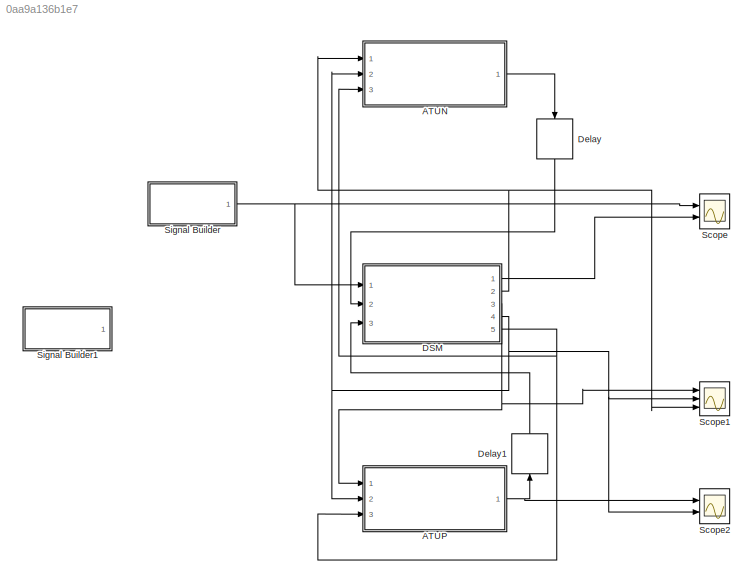
MODEL slx_0aa9a136b1e7
KIND model
CONFIG AbsTol = auto
CONFIG EnableMultiTasking = off
CONFIG FixedStep = 1/360
CONFIG MaxStep = auto
CONFIG MinStep = auto
CONFIG RelTol = 1e-3
CONFIG SampleTimeConstraint = Unconstrained
CONFIG Solver = VariableStepAuto
CONFIG SolverName = VariableStepAuto
CONFIG StartTime = 0.0
CONFIG StopTime = 10000
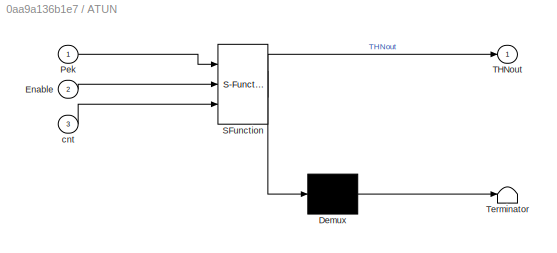
BLOCK [SubSystem] ATUN
  ErrorFcn = Stateflow.Translate.translate
  PermitHierarchicalResolution = ExplicitOnly
  Ports = [3, 1]
  RequestExecContextInheritance = off
  SFBlockType = MATLAB Function
  TreatAsAtomicUnit = on
  Variant = off
BLOCK [Demux] ATUN/ Demux 
  Outputs = 1
  Ports = [1, 1]
BLOCK [S-Function] ATUN/ SFunction 
  EnableBusSupport = on
  FunctionName = sf_sfun
  PortCounts = [3 2]
  Ports = [3, 2]
  SFcnIsStateOwnerBlock = off
  SFunctionDeploymentMode = off
  Tag = Stateflow S-Function dsmDemo 1
BLOCK [Terminator] ATUN/ Terminator 
BLOCK [Inport] ATUN/Enable
  IconDisplay = Port number
  Port = 2
BLOCK [Inport] ATUN/Pek
  IconDisplay = Port number
BLOCK [Outport] ATUN/THNout
  IconDisplay = Port number
BLOCK [Inport] ATUN/cnt
  IconDisplay = Port number
  Port = 3
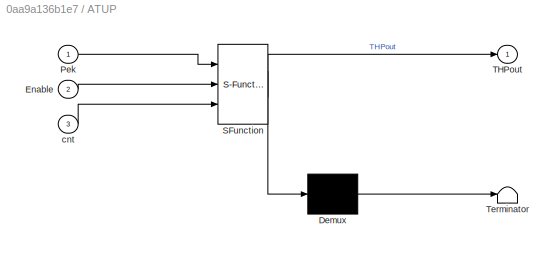
BLOCK [SubSystem] ATUP
  ErrorFcn = Stateflow.Translate.translate
  PermitHierarchicalResolution = ExplicitOnly
  Ports = [3, 1]
  RequestExecContextInheritance = off
  SFBlockType = MATLAB Function
  TreatAsAtomicUnit = on
  Variant = off
BLOCK [Demux] ATUP/ Demux 
  Outputs = 1
  Ports = [1, 1]
BLOCK [S-Function] ATUP/ SFunction 
  EnableBusSupport = on
  FunctionName = sf_sfun
  PortCounts = [3 2]
  Ports = [3, 2]
  SFcnIsStateOwnerBlock = off
  SFunctionDeploymentMode = off
  Tag = Stateflow S-Function dsmDemo 4
BLOCK [Terminator] ATUP/ Terminator 
BLOCK [Inport] ATUP/Enable
  IconDisplay = Port number
  Port = 2
BLOCK [Inport] ATUP/Pek
  IconDisplay = Port number
BLOCK [Outport] ATUP/THPout
  IconDisplay = Port number
BLOCK [Inport] ATUP/cnt
  IconDisplay = Port number
  Port = 3
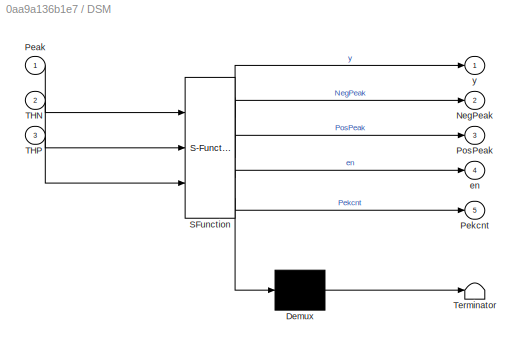
BLOCK [SubSystem] DSM
  ErrorFcn = Stateflow.Translate.translate
  PermitHierarchicalResolution = ExplicitOnly
  Ports = [3, 5]
  RequestExecContextInheritance = off
  SFBlockType = Chart
  TreatAsAtomicUnit = on
  Variant = off
BLOCK [Demux] DSM/ Demux 
  Outputs = 1
  Ports = [1, 1]
BLOCK [S-Function] DSM/ SFunction 
  EnableBusSupport = on
  FunctionName = sf_sfun
  PortCounts = [3 6]
  Ports = [3, 6]
  SFcnIsStateOwnerBlock = off
  SFunctionDeploymentMode = off
  Tag = Stateflow S-Function dsmDemo 3
BLOCK [Terminator] DSM/ Terminator 
BLOCK [Outport] DSM/NegPeak
  IconDisplay = Port number
  Port = 2
BLOCK [Inport] DSM/Peak
  IconDisplay = Port number
BLOCK [Outport] DSM/Pekcnt
  IconDisplay = Port number
  Port = 5
BLOCK [Outport] DSM/PosPeak
  IconDisplay = Port number
  Port = 3
BLOCK [Inport] DSM/THN
  IconDisplay = Port number
  Port = 2
BLOCK [Inport] DSM/THP
  IconDisplay = Port number
  Port = 3
BLOCK [Outport] DSM/en
  IconDisplay = Port number
  Port = 4
BLOCK [Outport] DSM/y
  IconDisplay = Port number
BLOCK [Delay] Delay
  DelayLength = 1
  InitialCondition = -0.3
  InputPortMap = u0
  Ports = [1, 1]
BLOCK [Delay] Delay1
  DelayLength = 1
  InitialCondition = 0.3
  InputPortMap = u0
  Ports = [1, 1]
BLOCK [Scope] Scope
  NumInputPorts = 2
  Ports = [2]
  ScopeSpecificationString = Simulink.scopes.TimeScopeBlockCfg('CurrentConfiguration', extmgr.ConfigurationSet(extmgr.Configuration('Core','General UI',true),extmgr.Configuration('Core','Source UI',true),extmgr.Configuration('Sources','WiredSimulink',true),extmgr.Configuration('Visuals','Time Domain',true,'SerializedDisplays',{struct('MinYLimReal','-0.6977','MaxYLimReal','1.18863','YLabelReal','','MinYLimMag','0.00000','MaxYL...<+1439ch>
BLOCK [Scope] Scope1
  NumInputPorts = 3
  Ports = [3]
  ScopeSpecificationString = Simulink.scopes.TimeScopeBlockCfg('CurrentConfiguration', extmgr.ConfigurationSet(extmgr.Configuration('Core','General UI',true),extmgr.Configuration('Core','Source UI',true),extmgr.Configuration('Sources','WiredSimulink',true,'DataLoggingVariableName','ScopeData1'),extmgr.Configuration('Visuals','Time Domain',true,'SerializedDisplays',{struct('MinYLimReal','-0.6977','MaxYLimReal','1.18863','YLabe...<+1447ch>
BLOCK [Scope] Scope2
  NumInputPorts = 2
  Ports = [2]
  ScopeSpecificationString = Simulink.scopes.TimeScopeBlockCfg('CurrentConfiguration', extmgr.ConfigurationSet(extmgr.Configuration('Core','General UI',true),extmgr.Configuration('Core','Source UI',true),extmgr.Configuration('Sources','WiredSimulink',true,'DataLoggingVariableName','ScopeData2'),extmgr.Configuration('Visuals','Time Domain',true,'SerializedDisplays',{struct('MinYLimReal','-0.125','MaxYLimReal','1.125','YLabelRe...<+1459ch>
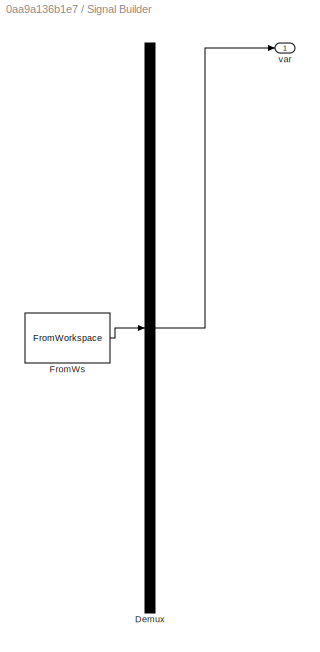
BLOCK [SubSystem] Signal Builder
  ClipboardFcn = sigbuilder_block('clipboard');
  CloseFcn = sigbuilder_block('close');
  ContinueFcn = sigbuilder_block('continue');
  CopyFcn = sigbuilder_block('copy');
  DeleteFcn = sigbuilder_block('delete');
  LoadFcn = sigbuilder_block('load',[806.25 282 915.75 378.75 ]);
  MaskHideContents = on
  ModelCloseFcn = sigbuilder_block('modelClose');
  NameChangeFcn = sigbuilder_block('namechange');
  OpenFcn = sigbuilder_block('open',[-1.5 104.25 519 399.75 ]);
  PauseFcn = sigbuilder_block('pause');
  Ports = [0, 1]
  PreSaveFcn = sigbuilder_block('preSave');
  RequestExecContextInheritance = off
  StartFcn = sigbuilder_block('start');
  StopFcn = sigbuilder_block('stop');
  Tag = STV Subsys
  Variant = off
BLOCK [Demux] Signal Builder/Demux
  Outputs = 1
  Ports = [1, 1]
  Tag = STV Demux
BLOCK [FromWorkspace] Signal Builder/FromWs
  SampleTime = 0
  Tag = STV FromWs
  VariableName = tuvar
  ZeroCross = on
BLOCK [Outport] Signal Builder/var
  IconDisplay = Port number
  Tag = STV Outport
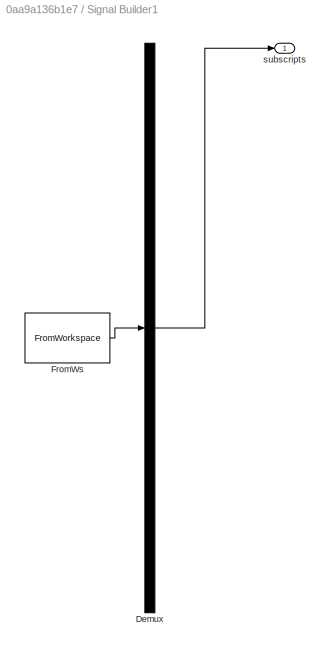
BLOCK [SubSystem] Signal Builder1
  ClipboardFcn = sigbuilder_block('clipboard');
  CloseFcn = sigbuilder_block('close');
  ContinueFcn = sigbuilder_block('continue');
  CopyFcn = sigbuilder_block('copy');
  DeleteFcn = sigbuilder_block('delete');
  LoadFcn = sigbuilder_block('load');
  MaskHideContents = on
  ModelCloseFcn = sigbuilder_block('modelClose');
  NameChangeFcn = sigbuilder_block('namechange');
  OpenFcn = sigbuilder_block('open',[364.5 63.75 550.5 399.75 ]);
  PauseFcn = sigbuilder_block('pause');
  Ports = [0, 1]
  PreSaveFcn = sigbuilder_block('preSave');
  RequestExecContextInheritance = off
  StartFcn = sigbuilder_block('start');
  StopFcn = sigbuilder_block('stop');
  Tag = STV Subsys
  Variant = off
BLOCK [Demux] Signal Builder1/Demux
  Outputs = 1
  Ports = [1, 1]
  Tag = STV Demux
BLOCK [FromWorkspace] Signal Builder1/FromWs
  SampleTime = 0
  Tag = STV FromWs
  VariableName = tuvar
  ZeroCross = on
BLOCK [Outport] Signal Builder1/subscripts
  IconDisplay = Port number
  Tag = STV Outport
LINE ATUN:1 -> Delay:1
NET ATUP:1 -> Delay1:1, Scope2:1
LINE DSM:1 -> Scope:2
NET DSM:2 -> ATUN:1, Scope1:3
NET DSM:3 -> ATUP:1, Scope1:1
NET DSM:4 -> ATUN:2, ATUP:2, Scope1:2, Scope2:2
NET DSM:5 -> ATUN:3, ATUP:3
LINE Delay1:1 -> DSM:3
LINE Delay:1 -> DSM:2
NET Signal Builder:1 -> DSM:1, Scope:1
note: NET lines group one-source signal fan-out (src -> all destinations, sorted); 1:1 wires keep LINE
CHART ATUN states=1 transitions=1
  STATE_LABEL 'eML_blk_kernel()'
  STATE_LABEL 'SCRIPT:\nfunction THNout = ma(Pek,Enable, cnt)\n% Declare one persistent vectors\npersistent sum alpha temp\n% Initialize the variables\nif isempty(sum)\n    sum = zeros(1,8);\n    alpha = 0.5;\n    temp = -0.17;\nend\n% Compute the accumulated sum and the number of values so far.\nif Enable ==1 \n    switch cnt\n        case {1,2,3,4,5,6,7}\n          sum(cnt) = Pek;\n          THNout = temp;\n        case 8\n   ...<+214ch>'
CHART DSM states=6 transitions=11
  STATE_LABEL 'Ready\nentry: y=0, en = 0;'
  STATE_LABEL 'P_Peak1\nentry:PosPeak = Peak;\nduring:CountP = CountP +1;\n'
  STATE_LABEL 'N_Peak1\nentry:NegPeak = Peak;\nduring:CountN = CountN + 1;\n'
  STATE_LABEL 'N_Peak2\nentry:NegPeak = Peak;'
  STATE_LABEL 'P_Peak2\nentry:PosPeak = Peak;'
  STATE_LABEL 'Peak_Pair\nentry: y=1, en = 1, Pekcnt = Pekcnt +1;\nduring: y=0, en = 0, CountPair = CountPair + 1;'
CHART ATUP states=1 transitions=1
  STATE_LABEL 'eML_blk_kernel()'
  STATE_LABEL 'SCRIPT:\nfunction THPout = ma(Pek,Enable,cnt)\n% Declare one persistent vectors\npersistent sum alpha temp\n% Initialize the variables\nif isempty(sum)\n    sum = zeros(1,8);\n    alpha = 0.5;\n    temp = 0.17;\nend\n% Compute the accumulated sum and the number of values so far.\nif (Enable == 1) \n    switch cnt\n        case {1,2,3,4,5,6,7}\n          sum(cnt) = Pek;\n          THPout = temp;\n        case 8\n  ...<+215ch>'
